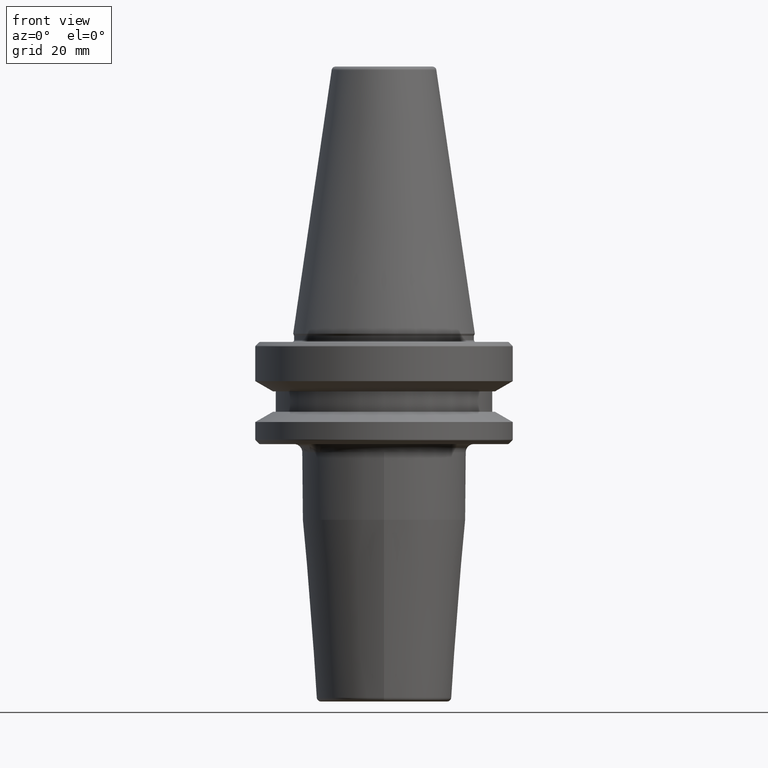
[diagram: clean part render]
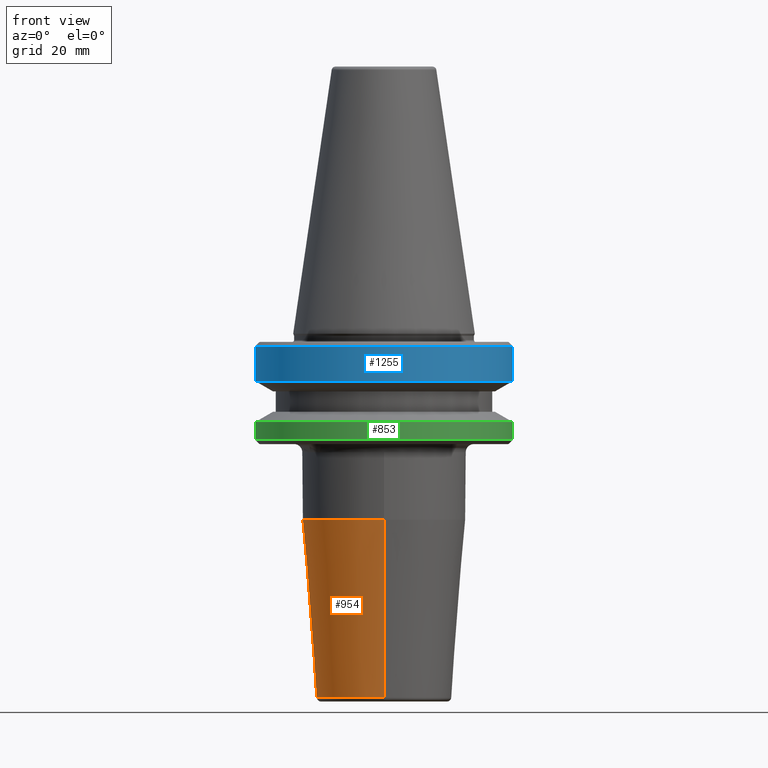
[diagram: same view with three faces highlighted in distinct colors, each labeled with its STEP entity id]
A machine part, front view with three faces highlighted in distinct colors.
Their STEP definitions:

[orange] entity #954 — the highlighted conical surface has half-angle 4.5 deg.
#119 = CARTESIAN_POINT ( 'NONE',  ( 0.0000000000000000000, -20.00000000000000400, -45.52828342338444400 ) ) ;
#159 = LINE ( 'NONE', #198, #830 ) ;
#179 = DIRECTION ( 'NONE',  ( -0.0000000000000000000, 2.332660569804487100E-017, -1.000000000000000000 ) ) ;
#194 = CARTESIAN_POINT ( 'NONE',  ( 2.029549195093064100E-015, -16.57252684207492200, -89.07845909572782300 ) ) ;
#198 = CARTESIAN_POINT ( 'NONE',  ( 2.029549195093064400E-015, 16.57252684207492200, -89.07845909572782300 ) ) ;
#220 = EDGE_LOOP ( 'NONE', ( #723, #601, #352, #438 ) ) ;
#239 = CIRCLE ( 'NONE', #496, 16.57252684207492200 ) ;
#291 = EDGE_CURVE ( 'NONE', #486, #669, #910, .T. ) ;
#325 = DIRECTION ( 'NONE',  ( -0.0000000000000000000, 2.332660569804487100E-017, -1.000000000000000000 ) ) ;
#336 = VERTEX_POINT ( 'NONE', #1034 ) ;
#344 = DIRECTION ( 'NONE',  ( 0.0000000000000000000, -1.000000000000000000, 0.0000000000000000000 ) ) ;
#352 = ORIENTED_EDGE ( 'NONE', *, *, #291, .T. ) ;
#367 = CARTESIAN_POINT ( 'NONE',  ( 0.0000000000000000000, 16.57252684207492200, -89.07845909572782300 ) ) ;
#438 = ORIENTED_EDGE ( 'NONE', *, *, #834, .T. ) ;
#486 = VERTEX_POINT ( 'NONE', #194 ) ;
#496 = AXIS2_PLACEMENT_3D ( 'NONE', #971, #179, #782 ) ;
#566 = EDGE_CURVE ( 'NONE', #486, #1083, #239, .T. ) ;
#581 = FACE_OUTER_BOUND ( 'NONE', #220, .T. ) ;
#601 = ORIENTED_EDGE ( 'NONE', *, *, #566, .F. ) ;
#614 = AXIS2_PLACEMENT_3D ( 'NONE', #925, #325, #1021 ) ;
#629 = DIRECTION ( 'NONE',  ( 0.0000000000000000000, -0.07845909572783769900, 0.9969173337331285200 ) ) ;
#634 = CARTESIAN_POINT ( 'NONE',  ( 0.0000000000000000000, -16.57252684207492200, -89.07845909572782300 ) ) ;
#669 = VERTEX_POINT ( 'NONE', #119 ) ;
#723 = ORIENTED_EDGE ( 'NONE', *, *, #1247, .F. ) ;
#754 = AXIS2_PLACEMENT_3D ( 'NONE', #1036, #943, #344 ) ;
#782 = DIRECTION ( 'NONE',  ( 0.0000000000000000000, 1.000000000000000000, 0.0000000000000000000 ) ) ;
#816 = CONICAL_SURFACE ( 'NONE', #754, 16.57252684207492200, 0.07853981633973755600 ) ;
#830 = VECTOR ( 'NONE', #889, 999.9999999999998900 ) ;
#834 = EDGE_CURVE ( 'NONE', #669, #336, #1044, .T. ) ;
#889 = DIRECTION ( 'NONE',  ( 9.608468044709219900E-018, 0.07845909572783765800, 0.9969173337331286300 ) ) ;
#910 = LINE ( 'NONE', #634, #1137 ) ;
#925 = CARTESIAN_POINT ( 'NONE',  ( 0.0000000000000000000, 4.322019616789097300E-016, -45.52828342338444400 ) ) ;
#943 = DIRECTION ( 'NONE',  ( 0.0000000000000000000, -2.332660569804487100E-017, 1.000000000000000000 ) ) ;
#954 = ADVANCED_FACE ( 'NONE', ( #581 ), #816, .T. ) ;
#971 = CARTESIAN_POINT ( 'NONE',  ( 0.0000000000000000000, 1.448079737668250300E-015, -89.07845909572782300 ) ) ;
#1021 = DIRECTION ( 'NONE',  ( 0.0000000000000000000, 1.000000000000000000, 0.0000000000000000000 ) ) ;
#1034 = CARTESIAN_POINT ( 'NONE',  ( 2.449293598294706500E-015, 20.00000000000000000, -45.52828342338444400 ) ) ;
#1036 = CARTESIAN_POINT ( 'NONE',  ( 0.0000000000000000000, 1.448079737668250300E-015, -89.07845909572782300 ) ) ;
#1044 = CIRCLE ( 'NONE', #614, 20.00000000000000000 ) ;
#1083 = VERTEX_POINT ( 'NONE', #367 ) ;
#1137 = VECTOR ( 'NONE', #629, 1000.000000000000000 ) ;
#1247 = EDGE_CURVE ( 'NONE', #1083, #336, #159, .T. ) ;

[blue] entity #1255 — the highlighted cylindrical surface (partial cylindrical patch) has radius 31.5 mm, axis along (-0, -0, 1).
#18 = CARTESIAN_POINT ( 'NONE',  ( 31.49999999999999300, 0.0000000000000000000, -3.165685424949243700 ) ) ;
#66 = DIRECTION ( 'NONE',  ( -0.0000000000000000000, -0.0000000000000000000, 1.000000000000000000 ) ) ;
#92 = CARTESIAN_POINT ( 'NONE',  ( 0.0000000000000000000, 0.0000000000000000000, 69.75694866325665100 ) ) ;
#115 = EDGE_CURVE ( 'NONE', #1112, #728, #1088, .T. ) ;
#133 = CARTESIAN_POINT ( 'NONE',  ( 31.50000000000000000, 0.0000000000000000000, 69.75694866325665100 ) ) ;
#263 = ORIENTED_EDGE ( 'NONE', *, *, #115, .T. ) ;
#329 = DIRECTION ( 'NONE',  ( -0.0000000000000000000, -0.0000000000000000000, 1.000000000000000000 ) ) ;
#366 = AXIS2_PLACEMENT_3D ( 'NONE', #92, #497, #397 ) ;
#397 = DIRECTION ( 'NONE',  ( 1.000000000000000000, 0.0000000000000000000, 0.0000000000000000000 ) ) ;
#490 = CIRCLE ( 'NONE', #737, 31.50000000000000000 ) ;
#497 = DIRECTION ( 'NONE',  ( -0.0000000000000000000, -0.0000000000000000000, 1.000000000000000000 ) ) ;
#525 = AXIS2_PLACEMENT_3D ( 'NONE', #1161, #576, #1256 ) ;
#533 = CYLINDRICAL_SURFACE ( 'NONE', #366, 31.50000000000000000 ) ;
#567 = DIRECTION ( 'NONE',  ( -0.0000000000000000000, -0.0000000000000000000, 1.000000000000000000 ) ) ;
#570 = CARTESIAN_POINT ( 'NONE',  ( 31.50000000000000000, 0.0000000000000000000, -11.59985799368323700 ) ) ;
#571 = VECTOR ( 'NONE', #567, 1000.000000000000000 ) ;
#576 = DIRECTION ( 'NONE',  ( -0.0000000000000000000, -0.0000000000000000000, 1.000000000000000000 ) ) ;
#724 = CIRCLE ( 'NONE', #525, 31.49999999999999300 ) ;
#728 = VERTEX_POINT ( 'NONE', #18 ) ;
#737 = AXIS2_PLACEMENT_3D ( 'NONE', #929, #329, #1023 ) ;
#753 = VECTOR ( 'NONE', #66, 1000.000000000000000 ) ;
#767 = CARTESIAN_POINT ( 'NONE',  ( -31.50000000000000000, 3.857637417314162700E-015, 69.75694866325665100 ) ) ;
#771 = VERTEX_POINT ( 'NONE', #915 ) ;
#793 = ORIENTED_EDGE ( 'NONE', *, *, #1066, .F. ) ;
#856 = EDGE_CURVE ( 'NONE', #1195, #1112, #490, .T. ) ;
#882 = ORIENTED_EDGE ( 'NONE', *, *, #1119, .F. ) ;
#915 = CARTESIAN_POINT ( 'NONE',  ( -31.49999999999999300, 3.857637417314161900E-015, -3.165685424949243700 ) ) ;
#929 = CARTESIAN_POINT ( 'NONE',  ( 0.0000000000000000000, 0.0000000000000000000, -11.59985799368323700 ) ) ;
#976 = CARTESIAN_POINT ( 'NONE',  ( -31.50000000000000000, 3.857637417314162700E-015, -11.59985799368323700 ) ) ;
#1023 = DIRECTION ( 'NONE',  ( 1.000000000000000000, 0.0000000000000000000, 0.0000000000000000000 ) ) ;
#1066 = EDGE_CURVE ( 'NONE', #1195, #771, #1212, .T. ) ;
#1085 = FACE_OUTER_BOUND ( 'NONE', #1162, .T. ) ;
#1088 = LINE ( 'NONE', #133, #571 ) ;
#1112 = VERTEX_POINT ( 'NONE', #570 ) ;
#1119 = EDGE_CURVE ( 'NONE', #771, #728, #724, .T. ) ;
#1161 = CARTESIAN_POINT ( 'NONE',  ( 0.0000000000000000000, 0.0000000000000000000, -3.165685424949243700 ) ) ;
#1162 = EDGE_LOOP ( 'NONE', ( #793, #1237, #263, #882 ) ) ;
#1195 = VERTEX_POINT ( 'NONE', #976 ) ;
#1212 = LINE ( 'NONE', #767, #753 ) ;
#1237 = ORIENTED_EDGE ( 'NONE', *, *, #856, .T. ) ;
#1255 = ADVANCED_FACE ( 'NONE', ( #1085 ), #533, .T. ) ;
#1256 = DIRECTION ( 'NONE',  ( 1.000000000000000000, 0.0000000000000000000, 0.0000000000000000000 ) ) ;

[green] entity #853 — the highlighted cylindrical surface (partial cylindrical patch) has radius 31.5 mm, axis along (-0, -0, 1).
#24 = LINE ( 'NONE', #632, #792 ) ;
#26 = CARTESIAN_POINT ( 'NONE',  ( 31.50000000000000000, 0.0000000000000000000, -21.60014200631675500 ) ) ;
#28 = DIRECTION ( 'NONE',  ( -0.0000000000000000000, -0.0000000000000000000, 1.000000000000000000 ) ) ;
#101 = CIRCLE ( 'NONE', #855, 31.50000000000000000 ) ;
#126 = DIRECTION ( 'NONE',  ( -0.0000000000000000000, -0.0000000000000000000, 1.000000000000000000 ) ) ;
#150 = ORIENTED_EDGE ( 'NONE', *, *, #447, .T. ) ;
#157 = ORIENTED_EDGE ( 'NONE', *, *, #788, .F. ) ;
#158 = VERTEX_POINT ( 'NONE', #950 ) ;
#219 = CARTESIAN_POINT ( 'NONE',  ( -31.50000000000000000, 3.857637417314162700E-015, -25.83431457505076900 ) ) ;
#225 = CARTESIAN_POINT ( 'NONE',  ( 0.0000000000000000000, 0.0000000000000000000, -21.60014200631675500 ) ) ;
#227 = CYLINDRICAL_SURFACE ( 'NONE', #810, 31.50000000000000000 ) ;
#274 = EDGE_CURVE ( 'NONE', #663, #158, #654, .T. ) ;
#284 = FACE_OUTER_BOUND ( 'NONE', #927, .T. ) ;
#317 = CIRCLE ( 'NONE', #402, 31.50000000000000000 ) ;
#322 = DIRECTION ( 'NONE',  ( 1.000000000000000000, 0.0000000000000000000, 0.0000000000000000000 ) ) ;
#359 = CARTESIAN_POINT ( 'NONE',  ( -31.50000000000000000, 3.857637417314162700E-015, 69.75694866325665100 ) ) ;
#402 = AXIS2_PLACEMENT_3D ( 'NONE', #225, #919, #322 ) ;
#406 = VERTEX_POINT ( 'NONE', #657 ) ;
#420 = DIRECTION ( 'NONE',  ( 1.000000000000000000, 0.0000000000000000000, 0.0000000000000000000 ) ) ;
#447 = EDGE_CURVE ( 'NONE', #663, #406, #101, .T. ) ;
#528 = DIRECTION ( 'NONE',  ( -0.0000000000000000000, -0.0000000000000000000, 1.000000000000000000 ) ) ;
#632 = CARTESIAN_POINT ( 'NONE',  ( 31.50000000000000000, 0.0000000000000000000, 69.75694866325665100 ) ) ;
#654 = LINE ( 'NONE', #359, #1167 ) ;
#657 = CARTESIAN_POINT ( 'NONE',  ( 31.50000000000000000, 0.0000000000000000000, -25.83431457505076900 ) ) ;
#663 = VERTEX_POINT ( 'NONE', #219 ) ;
#788 = EDGE_CURVE ( 'NONE', #158, #800, #317, .T. ) ;
#792 = VECTOR ( 'NONE', #28, 1000.000000000000000 ) ;
#800 = VERTEX_POINT ( 'NONE', #26 ) ;
#810 = AXIS2_PLACEMENT_3D ( 'NONE', #1122, #528, #1216 ) ;
#814 = EDGE_CURVE ( 'NONE', #406, #800, #24, .T. ) ;
#853 = ADVANCED_FACE ( 'NONE', ( #284 ), #227, .T. ) ;
#855 = AXIS2_PLACEMENT_3D ( 'NONE', #1010, #1147, #420 ) ;
#919 = DIRECTION ( 'NONE',  ( -0.0000000000000000000, -0.0000000000000000000, 1.000000000000000000 ) ) ;
#927 = EDGE_LOOP ( 'NONE', ( #1093, #150, #1252, #157 ) ) ;
#950 = CARTESIAN_POINT ( 'NONE',  ( -31.50000000000000000, 3.857637417314162700E-015, -21.60014200631675500 ) ) ;
#1010 = CARTESIAN_POINT ( 'NONE',  ( 0.0000000000000000000, 0.0000000000000000000, -25.83431457505076900 ) ) ;
#1093 = ORIENTED_EDGE ( 'NONE', *, *, #274, .F. ) ;
#1122 = CARTESIAN_POINT ( 'NONE',  ( 0.0000000000000000000, 0.0000000000000000000, 69.75694866325665100 ) ) ;
#1147 = DIRECTION ( 'NONE',  ( -0.0000000000000000000, -0.0000000000000000000, 1.000000000000000000 ) ) ;
#1167 = VECTOR ( 'NONE', #126, 1000.000000000000000 ) ;
#1216 = DIRECTION ( 'NONE',  ( 1.000000000000000000, 0.0000000000000000000, 0.0000000000000000000 ) ) ;
#1252 = ORIENTED_EDGE ( 'NONE', *, *, #814, .T. ) ;